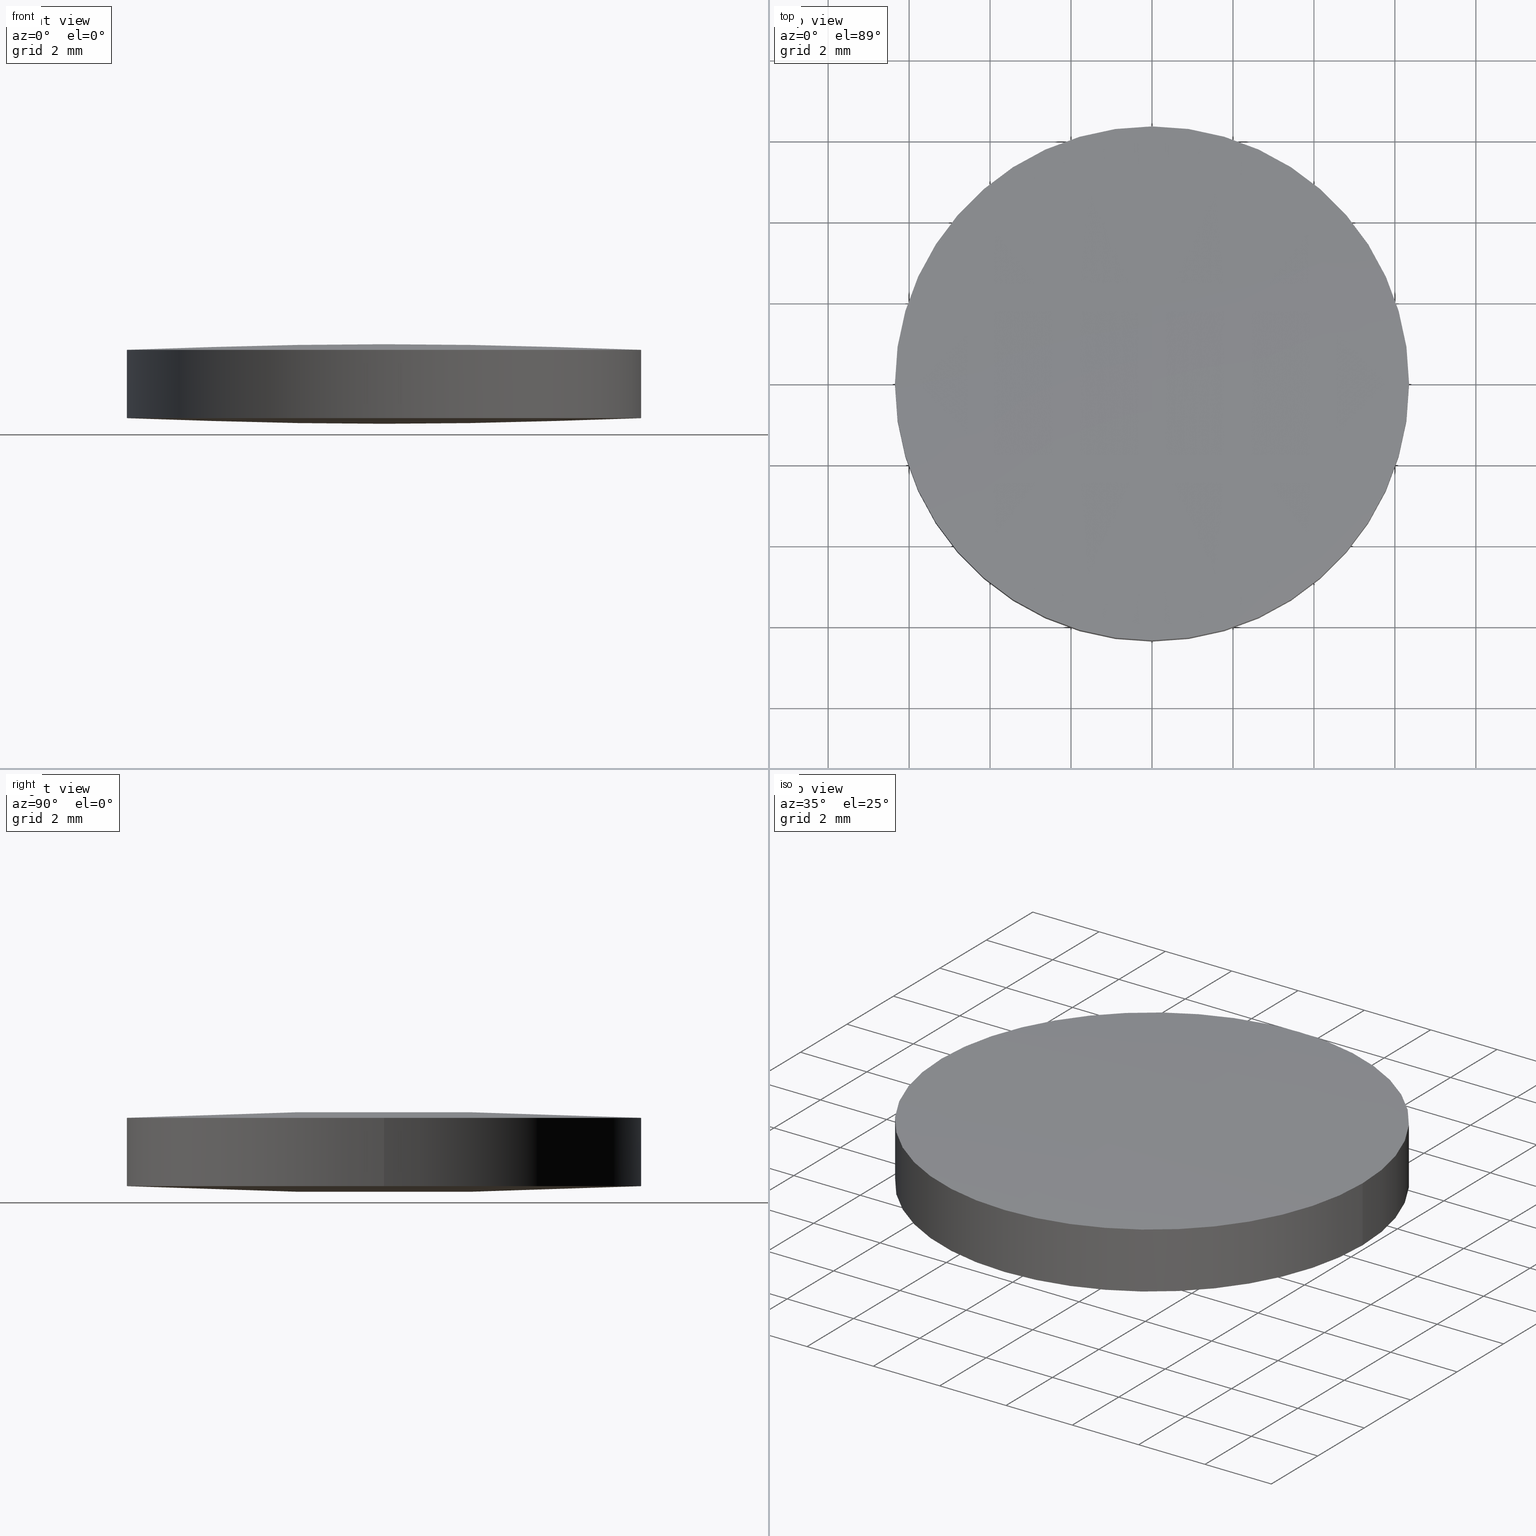
[diagram: canonical four-view strip — front | top / right | iso, engineering-drawing reading convention]
A machine part, canonical four-view strip (front | top / right | iso — engineering-drawing reading convention). The complete STEP part file that produces these views, byte-faithful:
ISO-10303-21;
HEADER;
FILE_DESCRIPTION (( 'STEP AP203' ),
    '1' );
FILE_NAME ('111-0128E BK7 bi-cx 12.7 F125.STEP',
    '2019-01-09T08:15:27',
    ( '' ),
    ( '' ),
    'SwSTEP 2.0',
    'SolidWorks 2017',
    '' );
FILE_SCHEMA (( 'CONFIG_CONTROL_DESIGN' ));
ENDSEC;

DATA;
#1 = ORIENTED_EDGE ( 'NONE', *, *, #227, .F. ) ;
#2 = CARTESIAN_POINT ( 'NONE',  ( 4.261986648307224200, 2.143812045025328400, 2.000641063830584700 ) ) ;
#3 = CARTESIAN_POINT ( 'NONE',  ( 1.040834085586084300E-014, 2.143812045025328000, 2.053306066189127100 ) ) ;
#4 = ADVANCED_BREP_SHAPE_REPRESENTATION ( '111-0128E BK7 bi-cx 12.7 F125', ( #196, #248 ), #107 ) ;
#5 = DIRECTION ( 'NONE',  ( 1.000000000000000000, 0.0000000000000000000, 0.0000000000000000000 ) ) ;
#6 = AXIS2_PLACEMENT_3D ( 'NONE', #287, #16, #84 ) ;
#7 = ORIENTED_EDGE ( 'NONE', *, *, #211, .F. ) ;
#8 = APPLICATION_CONTEXT ( 'configuration controlled 3d designs of mechanical parts and assemblies' ) ;
#9 = DATE_TIME_ROLE ( 'classification_date' ) ;
#10 = PERSON_AND_ORGANIZATION ( #162, #277 ) ;
#11 = PERSON_AND_ORGANIZATION ( #162, #277 ) ;
#12 = VERTEX_POINT ( 'NONE', #257 ) ;
#13 = CC_DESIGN_SECURITY_CLASSIFICATION ( #198, ( #127 ) ) ;
#14 = CARTESIAN_POINT ( 'NONE',  ( 1.990587361894917900E-014, 6.426137571815884200, 0.1597864493476375300 ) ) ;
#15 = DIRECTION ( 'NONE',  ( 1.000000000000000000, 0.0000000000000000000, 0.0000000000000000000 ) ) ;
#16 = DIRECTION ( 'NONE',  ( -0.0000000000000000000, -0.0000000000000000000, -1.000000000000000000 ) ) ;
#17 = CARTESIAN_POINT ( 'NONE',  ( -6.380174810760537200, -6.426137571816120400, 1.682510928002335100 ) ) ;
#18 = DIRECTION ( 'NONE',  ( 1.000000000000000000, 0.0000000000000000000, 0.0000000000000000000 ) ) ;
#19 = AXIS2_PLACEMENT_3D ( 'NONE', #210, #139, #185 ) ;
#20 = CARTESIAN_POINT ( 'NONE',  ( -2.127807646056741200, -6.426137571816119600, 1.840213550652392000 ) ) ;
#21 = APPROVAL_PERSON_ORGANIZATION ( #10, #56, #72 ) ;
#22 = CARTESIAN_POINT ( 'NONE',  ( 4.261986648307226000, -2.143812045025273800, 2.000641063830586500 ) ) ;
#23 = CARTESIAN_POINT ( 'NONE',  ( -1.127570259384924600E-014, 6.426137571815883300, 0.1597864493476235700 ) ) ;
#24 = CARTESIAN_POINT ( 'NONE',  ( 1.387778780781445700E-014, -6.426137571816118700, 1.840213550652405800 ) ) ;
#25 = AXIS2_PLACEMENT_3D ( 'NONE', #120, #157, #183 ) ;
#26 = CC_DESIGN_PERSON_AND_ORGANIZATION_ASSIGNMENT ( #140, #222, ( #127 ) ) ;
#27 = AXIS2_PLACEMENT_3D ( 'NONE', #83, #100, #116 ) ;
#28 = PERSON_AND_ORGANIZATION ( #162, #277 ) ;
#29 = EDGE_LOOP ( 'NONE', ( #7, #73, #203 ) ) ;
#30 =( LENGTH_UNIT ( ) NAMED_UNIT ( * ) SI_UNIT ( .MILLI., .METRE. ) );
#31 = COORDINATED_UNIVERSAL_TIME_OFFSET ( 2, 0, .AHEAD. ) ;
#32 = FACE_OUTER_BOUND ( 'NONE', #170, .T. ) ;
#33 = CARTESIAN_POINT ( 'NONE',  ( 2.127807646056743900, 6.426137571815883300, 0.1597864493476376100 ) ) ;
#34 = DIRECTION ( 'NONE',  ( -0.0000000000000000000, -0.0000000000000000000, -1.000000000000000000 ) ) ;
#35 = CYLINDRICAL_SURFACE ( 'NONE', #274, 6.349999999999999600 ) ;
#36 = CALENDAR_DATE ( 2019, 9, 1 ) ;
#37 = DIRECTION ( 'NONE',  ( 1.000000000000000000, 0.0000000000000000000, 0.0000000000000000000 ) ) ;
#38 =( BOUNDED_SURFACE ( )  B_SPLINE_SURFACE ( 3, 3, ( 
 ( #235, #20, #62, #17 ),
 ( #43, #63, #41, #42 ),
 ( #212, #89, #126, #249 ),
 ( #271, #103, #92, #142 ) ),
 .UNSPECIFIED., .F., .F., .F. ) 
 B_SPLINE_SURFACE_WITH_KNOTS ( ( 4, 4 ),
 ( 4, 4 ),
 ( 0.0000000000000000000, 1.000000000000000000 ),
 ( 0.0000000000000000000, 1.000000000000000000 ),
 .UNSPECIFIED. ) 
 GEOMETRIC_REPRESENTATION_ITEM ( )  RATIONAL_B_SPLINE_SURFACE ( (
 ( 1.000000000000000000, 0.9997964399850740600, 0.9997964399850740600, 1.000000000000000000),
 ( 0.9991761461750572300, 0.9989727538638282200, 0.9989727538638282200, 0.9991761461750572300),
 ( 0.9991761461750572300, 0.9989727538638282200, 0.9989727538638282200, 0.9991761461750572300),
 ( 1.000000000000000000, 0.9997964399850740600, 0.9997964399850740600, 1.000000000000000000) ) ) 
 REPRESENTATION_ITEM ( '' )  SURFACE ( )  );
#39 = PRODUCT_RELATED_PRODUCT_CATEGORY ( 'detail', '', ( #47 ) ) ;
#40 = DIRECTION ( 'NONE',  ( 1.000000000000000000, 0.0000000000000000000, 0.0000000000000000000 ) ) ;
#41 = CARTESIAN_POINT ( 'NONE',  ( -4.261986648307240200, -2.143812045025276000, 2.000641063830582000 ) ) ;
#42 = CARTESIAN_POINT ( 'NONE',  ( -6.390702650715330600, -2.143812045025276400, 1.895343220579506900 ) ) ;
#43 = CARTESIAN_POINT ( 'NONE',  ( -1.798689765139403600E-014, -2.143812045025275100, 2.053306066189115200 ) ) ;
#44 = VERTEX_POINT ( 'NONE', #152 ) ;
#45 = CARTESIAN_POINT ( 'NONE',  ( 6.349999999999999600, 1.221245327087670000E-015, 0.1560202719460870000 ) ) ;
#46 = CARTESIAN_POINT ( 'NONE',  ( -4.261986648307224200, 2.143812045025231600, -0.0006410638305369079000 ) ) ;
#47 = PRODUCT ( '111-0128E BK7 bi-cx 12.7 F125', '111-0128E BK7 bi-cx 12.7 F125', '', ( #108 ) ) ;
#48 = CARTESIAN_POINT ( 'NONE',  ( -6.390702650715310200, 2.143812045025232000, 0.1046567794205386600 ) ) ;
#49 = CALENDAR_DATE ( 2019, 9, 1 ) ;
#50 = DIRECTION ( 'NONE',  ( 0.0000000000000000000, 0.0000000000000000000, 1.000000000000000000 ) ) ;
#51 = SECURITY_CLASSIFICATION_LEVEL ( 'unclassified' ) ;
#52 = ORIENTED_EDGE ( 'NONE', *, *, #227, .T. ) ;
#53 = PERSON_AND_ORGANIZATION_ROLE ( 'creator' ) ;
#54 = ORIENTED_EDGE ( 'NONE', *, *, #129, .T. ) ;
#55 = AXIS2_PLACEMENT_3D ( 'NONE', #82, #286, #15 ) ;
#56 = APPROVAL ( #192, 'UNSPECIFIED' ) ;
#57 = CARTESIAN_POINT ( 'NONE',  ( 1.895048814194306300E-014, 2.143812045025231100, -0.05330606618906481900 ) ) ;
#58 = CARTESIAN_POINT ( 'NONE',  ( 1.798689765139404300E-014, -2.143812045025180100, -0.05330606618906638000 ) ) ;
#59 = CARTESIAN_POINT ( 'NONE',  ( 2.498001805406600200E-016, 1.221245327087670000E-015, 1.843979728053910100 ) ) ;
#60 = FACE_OUTER_BOUND ( 'NONE', #29, .T. ) ;
#61 = DIRECTION ( 'NONE',  ( 0.0000000000000000000, 0.0000000000000000000, 1.000000000000000000 ) ) ;
#62 = CARTESIAN_POINT ( 'NONE',  ( -4.254965587279182100, -6.426137571816119600, 1.787635306940968100 ) ) ;
#63 = CARTESIAN_POINT ( 'NONE',  ( -2.131318712605341200, -2.143812045025275600, 2.053306066189114300 ) ) ;
#64 = PERSON_AND_ORGANIZATION ( #162, #277 ) ;
#65 = EDGE_CURVE ( 'NONE', #226, #283, #188, .T. ) ;
#66 = ORIENTED_EDGE ( 'NONE', *, *, #110, .F. ) ;
#67 = DESIGN_CONTEXT ( 'detailed design', #147, 'design' ) ;
#68 = CARTESIAN_POINT ( 'NONE',  ( -4.254965587279170500, -6.426137571815831800, 0.2123646930590568100 ) ) ;
#69 = CARTESIAN_POINT ( 'NONE',  ( 2.131318712605331000, -2.143812045025274200, 2.053306066189127600 ) ) ;
#70 = CARTESIAN_POINT ( 'NONE',  ( -6.380174810760522100, -6.426137571815831800, 0.3174890719976897200 ) ) ;
#71 = CARTESIAN_POINT ( 'NONE',  ( -1.127570259384924600E-014, 2.143812045025230700, -0.05330606618907874500 ) ) ;
#72 = APPROVAL_ROLE ( '' ) ;
#73 = ORIENTED_EDGE ( 'NONE', *, *, #234, .T. ) ;
#74 = APPROVAL_ROLE ( '' ) ;
#75 = AXIS2_PLACEMENT_3D ( 'NONE', #59, #80, #37 ) ;
#76 = COORDINATED_UNIVERSAL_TIME_OFFSET ( 2, 0, .AHEAD. ) ;
#77 = APPROVAL_STATUS ( 'not_yet_approved' ) ;
#78 = CC_DESIGN_APPROVAL ( #56, ( #127 ) ) ;
#79 = LOCAL_TIME ( 10, 15, 27.00000000000000000, #135 ) ;
#80 = DIRECTION ( 'NONE',  ( -0.0000000000000000000, -0.0000000000000000000, -1.000000000000000000 ) ) ;
#81 = CARTESIAN_POINT ( 'NONE',  ( 6.380174810760535400, -6.426137571815834400, 0.3174890719976943300 ) ) ;
#82 = CARTESIAN_POINT ( 'NONE',  ( 2.498001805406600200E-016, 1.221245327087670000E-015, 1.843979728053910100 ) ) ;
#83 = CARTESIAN_POINT ( 'NONE',  ( 2.498001805406600200E-016, 1.221245327087670000E-015, 1.843979728053910100 ) ) ;
#84 = DIRECTION ( 'NONE',  ( 1.000000000000000000, 0.0000000000000000000, 0.0000000000000000000 ) ) ;
#85 = DIRECTION ( 'NONE',  ( 2.247376333165669900E-016, -1.000000000000000000, 2.146602909174702700E-016 ) ) ;
#86 = LOCAL_TIME ( 10, 15, 27.00000000000000000, #213 ) ;
#87 = CARTESIAN_POINT ( 'NONE',  ( 2.127807646056734600, -6.426137571816117800, 1.840213550652405500 ) ) ;
#88 = ORIENTED_EDGE ( 'NONE', *, *, #65, .F. ) ;
#89 = CARTESIAN_POINT ( 'NONE',  ( -2.131318712605342100, 2.143812045025326600, 2.053306066189112500 ) ) ;
#90 = CARTESIAN_POINT ( 'NONE',  ( 2.127807646056731000, 6.426137571816172000, 1.840213550652405500 ) ) ;
#91 = APPROVAL_PERSON_ORGANIZATION ( #109, #237, #106 ) ;
#92 = CARTESIAN_POINT ( 'NONE',  ( -4.254965587279184700, 6.426137571816170200, 1.787635306940968100 ) ) ;
#93 = DATE_TIME_ROLE ( 'creation_date' ) ;
#94 = APPROVAL_DATE_TIME ( #148, #56 ) ;
#95 = PERSON_AND_ORGANIZATION ( #162, #277 ) ;
#96 = ORIENTED_EDGE ( 'NONE', *, *, #234, .F. ) ;
#97 = EDGE_LOOP ( 'NONE', ( #144, #141, #113 ) ) ;
#98 = CARTESIAN_POINT ( 'NONE',  ( 2.127807646056740800, -6.426137571815833600, 0.1597864493476376100 ) ) ;
#99 = VERTEX_POINT ( 'NONE', #177 ) ;
#100 = DIRECTION ( 'NONE',  ( -0.0000000000000000000, -0.0000000000000000000, -1.000000000000000000 ) ) ;
#101 = UNCERTAINTY_MEASURE_WITH_UNIT (LENGTH_MEASURE( 1.000000000000000100E-005 ), #30, 'distance_accuracy_value', 'NONE');
#102 = CARTESIAN_POINT ( 'NONE',  ( 6.349999999999999600, 1.221245327087670000E-015, 0.1560202719460870000 ) ) ;
#103 = CARTESIAN_POINT ( 'NONE',  ( -2.127807646056744300, 6.426137571816170200, 1.840213550652392000 ) ) ;
#104 = CARTESIAN_POINT ( 'NONE',  ( 1.214306433183765000E-014, -2.143812045025274700, 2.053306066189128900 ) ) ;
#105 = CARTESIAN_POINT ( 'NONE',  ( 6.390702650715312800, -2.143812045025273800, 1.895343220579511300 ) ) ;
#106 = APPROVAL_ROLE ( '' ) ;
#107 =( GEOMETRIC_REPRESENTATION_CONTEXT ( 3 ) GLOBAL_UNCERTAINTY_ASSIGNED_CONTEXT ( ( #101 ) ) GLOBAL_UNIT_ASSIGNED_CONTEXT ( ( #30, #229, #253 ) ) REPRESENTATION_CONTEXT ( 'NONE', 'WORKASPACE' ) );
#108 = MECHANICAL_CONTEXT ( 'NONE', #8, 'mechanical' ) ;
#109 = PERSON_AND_ORGANIZATION ( #162, #277 ) ;
#110 = EDGE_CURVE ( 'NONE', #44, #226, #160, .T. ) ;
#111 = APPLICATION_PROTOCOL_DEFINITION ( 'international standard', 'config_control_design', 1994, #8 ) ;
#112 = EDGE_CURVE ( 'NONE', #283, #12, #262, .T. ) ;
#113 = ORIENTED_EDGE ( 'NONE', *, *, #278, .T. ) ;
#114 = VERTEX_POINT ( 'NONE', #205 ) ;
#115 = DATE_AND_TIME ( #169, #243 ) ;
#116 = DIRECTION ( 'NONE',  ( 1.000000000000000000, 0.0000000000000000000, 0.0000000000000000000 ) ) ;
#117 = ORIENTED_EDGE ( 'NONE', *, *, #172, .F. ) ;
#118 =( BOUNDED_SURFACE ( )  B_SPLINE_SURFACE ( 3, 3, ( 
 ( #244, #165, #87, #24 ),
 ( #105, #22, #69, #104 ),
 ( #275, #2, #246, #3 ),
 ( #220, #273, #90, #217 ) ),
 .UNSPECIFIED., .F., .F., .T. ) 
 B_SPLINE_SURFACE_WITH_KNOTS ( ( 4, 4 ),
 ( 4, 4 ),
 ( 0.0000000000000000000, 1.000000000000000000 ),
 ( 0.0000000000000000000, 1.000000000000000000 ),
 .UNSPECIFIED. ) 
 GEOMETRIC_REPRESENTATION_ITEM ( )  RATIONAL_B_SPLINE_SURFACE ( (
 ( 1.000000000000000000, 0.9997964399850740600, 0.9997964399850740600, 1.000000000000000000),
 ( 0.9991761461750572300, 0.9989727538638282200, 0.9989727538638282200, 0.9991761461750572300),
 ( 0.9991761461750572300, 0.9989727538638282200, 0.9989727538638282200, 0.9991761461750572300),
 ( 1.000000000000000000, 0.9997964399850740600, 0.9997964399850740600, 1.000000000000000000) ) ) 
 REPRESENTATION_ITEM ( '' )  SURFACE ( )  );
#119 = DIRECTION ( 'NONE',  ( 0.0000000000000000000, 0.0000000000000000000, 1.000000000000000000 ) ) ;
#120 = CARTESIAN_POINT ( 'NONE',  ( 2.498001805406600200E-016, 1.221245327087670000E-015, 0.1560202719460870000 ) ) ;
#121 = CARTESIAN_POINT ( 'NONE',  ( -4.261986648307226000, -2.143812045025179600, -0.0006410638305384935400 ) ) ;
#122 = EDGE_CURVE ( 'NONE', #233, #99, #267, .T. ) ;
#123 = EDGE_LOOP ( 'NONE', ( #216, #239, #137 ) ) ;
#124 = DIRECTION ( 'NONE',  ( 1.000000000000000000, 1.776356839400250500E-015, 0.0000000000000000000 ) ) ;
#125 = APPROVAL_DATE_TIME ( #268, #237 ) ;
#126 = CARTESIAN_POINT ( 'NONE',  ( -4.261986648307241100, 2.143812045025326200, 2.000641063830580300 ) ) ;
#127 = PRODUCT_DEFINITION_FORMATION_WITH_SPECIFIED_SOURCE ( 'ANY', '', #47, .NOT_KNOWN. ) ;
#128 = APPROVAL_STATUS ( 'not_yet_approved' ) ;
#129 = EDGE_CURVE ( 'NONE', #12, #44, #225, .T. ) ;
#130 = LOCAL_TIME ( 10, 15, 27.00000000000000000, #187 ) ;
#131 = PERSON_AND_ORGANIZATION_ROLE ( 'classification_officer' ) ;
#132 = CARTESIAN_POINT ( 'NONE',  ( 6.390702650715328800, -2.143812045025181400, 0.1046567794205416900 ) ) ;
#133 = DIRECTION ( 'NONE',  ( 1.000000000000000000, 8.881784197001252300E-016, 0.0000000000000000000 ) ) ;
#134 = CARTESIAN_POINT ( 'NONE',  ( 6.390702650715329700, 2.143812045025229800, 0.1046567794205432900 ) ) ;
#135 = COORDINATED_UNIVERSAL_TIME_OFFSET ( 2, 0, .AHEAD. ) ;
#136 = CARTESIAN_POINT ( 'NONE',  ( 2.131318712605339900, -2.143812045025180500, -0.05330606618906632400 ) ) ;
#137 = ORIENTED_EDGE ( 'NONE', *, *, #129, .F. ) ;
#138 = AXIS2_PLACEMENT_3D ( 'NONE', #261, #34, #133 ) ;
#139 = DIRECTION ( 'NONE',  ( 1.000000000000000000, -2.247376333165669900E-016, 3.291634602124400000E-017 ) ) ;
#140 = PERSON_AND_ORGANIZATION ( #162, #277 ) ;
#141 = ORIENTED_EDGE ( 'NONE', *, *, #211, .T. ) ;
#142 = CARTESIAN_POINT ( 'NONE',  ( -6.380174810760539800, 6.426137571816169300, 1.682510928002335100 ) ) ;
#143 = CARTESIAN_POINT ( 'NONE',  ( -1.703471866693090100E-014, -6.350000000000194200, 1.843979728053914100 ) ) ;
#144 = ORIENTED_EDGE ( 'NONE', *, *, #186, .T. ) ;
#145 = PERSON_AND_ORGANIZATION_ROLE ( 'design_owner' ) ;
#146 = DATE_AND_TIME ( #36, #130 ) ;
#147 = APPLICATION_CONTEXT ( 'configuration controlled 3d designs of mechanical parts and assemblies' ) ;
#148 = DATE_AND_TIME ( #224, #86 ) ;
#149 = ORIENTED_EDGE ( 'NONE', *, *, #278, .F. ) ;
#150 = CARTESIAN_POINT ( 'NONE',  ( 0.0000000000000000000, 0.0000000000000000000, 0.0000000000000000000 ) ) ;
#151 = ORIENTED_EDGE ( 'NONE', *, *, #186, .F. ) ;
#152 = CARTESIAN_POINT ( 'NONE',  ( -1.988888661005140300E-014, 6.350000000000244800, 1.843979728053914100 ) ) ;
#153 = CC_DESIGN_PERSON_AND_ORGANIZATION_ASSIGNMENT ( #11, #145, ( #47 ) ) ;
#154 = FACE_OUTER_BOUND ( 'NONE', #230, .T. ) ;
#155 = CARTESIAN_POINT ( 'NONE',  ( 4.254965587279183800, 6.426137571815883300, 0.2123646930590614400 ) ) ;
#156 = DIRECTION ( 'NONE',  ( 1.000000000000000000, -8.881784197001252300E-016, 0.0000000000000000000 ) ) ;
#157 = DIRECTION ( 'NONE',  ( 0.0000000000000000000, 0.0000000000000000000, 1.000000000000000000 ) ) ;
#158 = ORIENTED_EDGE ( 'NONE', *, *, #122, .F. ) ;
#159 = CARTESIAN_POINT ( 'NONE',  ( 2.498001805406600200E-016, 1.221245327087670000E-015, 0.1560202719460870000 ) ) ;
#160 = CIRCLE ( 'NONE', #27, 6.349999999999999600 ) ;
#161 = CARTESIAN_POINT ( 'NONE',  ( -1.474514954580286000E-014, -6.426137571815833600, 0.1597864493476235100 ) ) ;
#162 = PERSON ( 'UNSPECIFIED', 'UNSPECIFIED', 'UNSPECIFIED', ('UNSPECIFIED'), ('UNSPECIFIED'), ('UNSPECIFIED') ) ;
#163 = VECTOR ( 'NONE', #289, 1000.000000000000000 ) ;
#164 = EDGE_LOOP ( 'NONE', ( #1, #96, #151, #219, #263, #194 ) ) ;
#165 = CARTESIAN_POINT ( 'NONE',  ( 4.254965587279170500, -6.426137571816117800, 1.787635306940972700 ) ) ;
#166 = CC_DESIGN_APPROVAL ( #215, ( #208 ) ) ;
#167 = ORIENTED_EDGE ( 'NONE', *, *, #251, .F. ) ;
#168 =( BOUNDED_SURFACE ( )  B_SPLINE_SURFACE ( 3, 3, ( 
 ( #284, #98, #199, #81 ),
 ( #58, #136, #206, #132 ),
 ( #57, #204, #259, #134 ),
 ( #14, #33, #155, #202 ) ),
 .UNSPECIFIED., .F., .F., .T. ) 
 B_SPLINE_SURFACE_WITH_KNOTS ( ( 4, 4 ),
 ( 4, 4 ),
 ( 0.0000000000000000000, 1.000000000000000000 ),
 ( 0.0000000000000000000, 1.000000000000000000 ),
 .UNSPECIFIED. ) 
 GEOMETRIC_REPRESENTATION_ITEM ( )  RATIONAL_B_SPLINE_SURFACE ( (
 ( 1.000000000000000000, 0.9997964399850740600, 0.9997964399850740600, 1.000000000000000000),
 ( 0.9991761461750572300, 0.9989727538638282200, 0.9989727538638282200, 0.9991761461750572300),
 ( 0.9991761461750572300, 0.9989727538638282200, 0.9989727538638282200, 0.9991761461750572300),
 ( 1.000000000000000000, 0.9997964399850740600, 0.9997964399850740600, 1.000000000000000000) ) ) 
 REPRESENTATION_ITEM ( '' )  SURFACE ( )  );
#169 = CALENDAR_DATE ( 2019, 9, 1 ) ;
#170 = EDGE_LOOP ( 'NONE', ( #117, #88, #66 ) ) ;
#171 = ADVANCED_FACE ( 'NONE', ( #269 ), #168, .T. ) ;
#172 = EDGE_CURVE ( 'NONE', #283, #44, #252, .T. ) ;
#173 = LINE ( 'NONE', #102, #163 ) ;
#174 = DIRECTION ( 'NONE',  ( -0.0000000000000000000, -0.0000000000000000000, -1.000000000000000000 ) ) ;
#175 = DATE_AND_TIME ( #254, #79 ) ;
#176 = CC_DESIGN_DATE_AND_TIME_ASSIGNMENT ( #115, #93, ( #208 ) ) ;
#177 = CARTESIAN_POINT ( 'NONE',  ( 1.988888661005132700E-014, 6.349999999999970300, 0.1560202719460852300 ) ) ;
#178 = CIRCLE ( 'NONE', #6, 6.349999999999999600 ) ;
#179 = CARTESIAN_POINT ( 'NONE',  ( -6.349999999999999600, 1.998896044546239400E-015, 0.1560202719460870000 ) ) ;
#180 = AXIS2_PLACEMENT_3D ( 'NONE', #240, #182, #40 ) ;
#181 = SHAPE_DEFINITION_REPRESENTATION ( #228, #4 ) ;
#182 = DIRECTION ( 'NONE',  ( -0.0000000000000000000, -0.0000000000000000000, -1.000000000000000000 ) ) ;
#183 = DIRECTION ( 'NONE',  ( 1.000000000000000000, 0.0000000000000000000, 0.0000000000000000000 ) ) ;
#184 = CC_DESIGN_PERSON_AND_ORGANIZATION_ASSIGNMENT ( #260, #131, ( #198 ) ) ;
#185 = DIRECTION ( 'NONE',  ( -2.247376333165669900E-016, -1.000000000000000000, -4.293205818349405500E-016 ) ) ;
#186 = EDGE_CURVE ( 'NONE', #280, #114, #178, .T. ) ;
#187 = COORDINATED_UNIVERSAL_TIME_OFFSET ( 2, 0, .AHEAD. ) ;
#188 = CIRCLE ( 'NONE', #55, 6.349999999999999600 ) ;
#189 = CARTESIAN_POINT ( 'NONE',  ( -6.390702650715312000, -2.143812045025179200, 0.1046567794205370800 ) ) ;
#190 = CARTESIAN_POINT ( 'NONE',  ( -4.254965587279167000, 6.426137571815885100, 0.2123646930590568400 ) ) ;
#191 = CARTESIAN_POINT ( 'NONE',  ( -2.131318712605329700, 2.143812045025231100, -0.05330606618907832200 ) ) ;
#192 = APPROVAL_STATUS ( 'not_yet_approved' ) ;
#193 = ADVANCED_FACE ( 'NONE', ( #154 ), #209, .T. ) ;
#194 = ORIENTED_EDGE ( 'NONE', *, *, #112, .T. ) ;
#195 = CC_DESIGN_PERSON_AND_ORGANIZATION_ASSIGNMENT ( #28, #279, ( #127 ) ) ;
#196 = MANIFOLD_SOLID_BREP ( 'Imported1', #245 ) ;
#197 = VECTOR ( 'NONE', #61, 1000.000000000000000 ) ;
#198 = SECURITY_CLASSIFICATION ( '', '', #51 ) ;
#199 = CARTESIAN_POINT ( 'NONE',  ( 4.254965587279181200, -6.426137571815833600, 0.2123646930590614700 ) ) ;
#200 = AXIS2_PLACEMENT_3D ( 'NONE', #272, #221, #124 ) ;
#201 =( BOUNDED_SURFACE ( )  B_SPLINE_SURFACE ( 3, 3, ( 
 ( #70, #68, #242, #161 ),
 ( #189, #121, #247, #218 ),
 ( #48, #46, #191, #71 ),
 ( #292, #190, #294, #23 ) ),
 .UNSPECIFIED., .F., .F., .F. ) 
 B_SPLINE_SURFACE_WITH_KNOTS ( ( 4, 4 ),
 ( 4, 4 ),
 ( 0.0000000000000000000, 1.000000000000000000 ),
 ( 0.0000000000000000000, 1.000000000000000000 ),
 .UNSPECIFIED. ) 
 GEOMETRIC_REPRESENTATION_ITEM ( )  RATIONAL_B_SPLINE_SURFACE ( (
 ( 1.000000000000000000, 0.9997964399850740600, 0.9997964399850740600, 1.000000000000000000),
 ( 0.9991761461750572300, 0.9989727538638282200, 0.9989727538638282200, 0.9991761461750572300),
 ( 0.9991761461750572300, 0.9989727538638282200, 0.9989727538638282200, 0.9991761461750572300),
 ( 1.000000000000000000, 0.9997964399850740600, 0.9997964399850740600, 1.000000000000000000) ) ) 
 REPRESENTATION_ITEM ( '' )  SURFACE ( )  );
#202 = CARTESIAN_POINT ( 'NONE',  ( 6.380174810760538900, 6.426137571815882400, 0.3174890719976943300 ) ) ;
#203 = ORIENTED_EDGE ( 'NONE', *, *, #122, .T. ) ;
#204 = CARTESIAN_POINT ( 'NONE',  ( 2.131318712605341700, 2.143812045025230700, -0.05330606618906474900 ) ) ;
#205 = CARTESIAN_POINT ( 'NONE',  ( 1.703471866693095400E-014, -6.349999999999920600, 0.1560202719460852300 ) ) ;
#206 = CARTESIAN_POINT ( 'NONE',  ( 4.261986648307239300, -2.143812045025181000, -0.0006410638305338854600 ) ) ;
#207 = CARTESIAN_POINT ( 'NONE',  ( -1.421085471520200100E-014, 4.973799150320700000E-014, -127.3000000000000000 ) ) ;
#208 = PRODUCT_DEFINITION ( 'UNKNOWN', '', #127, #67 ) ;
#209 = CYLINDRICAL_SURFACE ( 'NONE', #25, 6.349999999999999600 ) ;
#210 = CARTESIAN_POINT ( 'NONE',  ( 1.421085471520200100E-014, 4.973799150320700000E-014, 129.3000000000000400 ) ) ;
#211 = EDGE_CURVE ( 'NONE', #114, #99, #282, .T. ) ;
#212 = CARTESIAN_POINT ( 'NONE',  ( -1.895048814194310400E-014, 2.143812045025327500, 2.053306066189113400 ) ) ;
#213 = COORDINATED_UNIVERSAL_TIME_OFFSET ( 2, 0, .AHEAD. ) ;
#214 = CIRCLE ( 'NONE', #180, 6.349999999999999600 ) ;
#215 = APPROVAL ( #77, 'UNSPECIFIED' ) ;
#216 = ORIENTED_EDGE ( 'NONE', *, *, #112, .F. ) ;
#217 = CARTESIAN_POINT ( 'NONE',  ( 1.040834085586084300E-014, 6.426137571816171100, 1.840213550652405800 ) ) ;
#218 = CARTESIAN_POINT ( 'NONE',  ( -1.301042606982605300E-014, -2.143812045025180500, -0.05330606618908043100 ) ) ;
#219 = ORIENTED_EDGE ( 'NONE', *, *, #251, .T. ) ;
#220 = CARTESIAN_POINT ( 'NONE',  ( 6.380174810760518500, 6.426137571816172800, 1.682510928002339800 ) ) ;
#221 = DIRECTION ( 'NONE',  ( -0.0000000000000000000, -0.0000000000000000000, -1.000000000000000000 ) ) ;
#222 = PERSON_AND_ORGANIZATION_ROLE ( 'creator' ) ;
#223 = CC_DESIGN_DATE_AND_TIME_ASSIGNMENT ( #146, #9, ( #198 ) ) ;
#224 = CALENDAR_DATE ( 2019, 9, 1 ) ;
#225 = CIRCLE ( 'NONE', #75, 6.349999999999999600 ) ;
#226 = VERTEX_POINT ( 'NONE', #288 ) ;
#227 = EDGE_CURVE ( 'NONE', #233, #12, #265, .T. ) ;
#228 = PRODUCT_DEFINITION_SHAPE ( 'NONE', 'NONE',  #208 ) ;
#229 =( NAMED_UNIT ( * ) PLANE_ANGLE_UNIT ( ) SI_UNIT ( $, .RADIAN. ) );
#230 = EDGE_LOOP ( 'NONE', ( #158, #52, #54, #270, #167, #149 ) ) ;
#231 = CC_DESIGN_PERSON_AND_ORGANIZATION_ASSIGNMENT ( #64, #53, ( #208 ) ) ;
#232 = CARTESIAN_POINT ( 'NONE',  ( 2.498001805406600200E-016, 1.221245327087670000E-015, 0.1560202719460870000 ) ) ;
#233 = VERTEX_POINT ( 'NONE', #266 ) ;
#234 = EDGE_CURVE ( 'NONE', #114, #233, #214, .T. ) ;
#235 = CARTESIAN_POINT ( 'NONE',  ( -1.701748372043599500E-014, -6.426137571816118700, 1.840213550652392000 ) ) ;
#236 = APPROVAL_DATE_TIME ( #175, #215 ) ;
#237 = APPROVAL ( #128, 'UNSPECIFIED' ) ;
#238 = FACE_OUTER_BOUND ( 'NONE', #164, .T. ) ;
#239 = ORIENTED_EDGE ( 'NONE', *, *, #172, .T. ) ;
#240 = CARTESIAN_POINT ( 'NONE',  ( 2.498001805406600200E-016, 1.221245327087670000E-015, 0.1560202719460870000 ) ) ;
#241 = AXIS2_PLACEMENT_3D ( 'NONE', #232, #174, #156 ) ;
#242 = CARTESIAN_POINT ( 'NONE',  ( -2.127807646056735400, -6.426137571815832700, 0.1597864493476239500 ) ) ;
#243 = LOCAL_TIME ( 10, 15, 27.00000000000000000, #76 ) ;
#244 = CARTESIAN_POINT ( 'NONE',  ( 6.380174810760522100, -6.426137571816116900, 1.682510928002339800 ) ) ;
#245 = CLOSED_SHELL ( 'NONE', ( #171, #256, #193, #285, #250, #276 ) ) ;
#246 = CARTESIAN_POINT ( 'NONE',  ( 2.131318712605328800, 2.143812045025328000, 2.053306066189126300 ) ) ;
#247 = CARTESIAN_POINT ( 'NONE',  ( -2.131318712605331500, -2.143812045025180100, -0.05330606618907999400 ) ) ;
#248 = AXIS2_PLACEMENT_3D ( 'NONE', #150, #50, #5 ) ;
#249 = CARTESIAN_POINT ( 'NONE',  ( -6.390702650715331500, 2.143812045025326200, 1.895343220579505100 ) ) ;
#250 = ADVANCED_FACE ( 'NONE', ( #238 ), #35, .T. ) ;
#251 = EDGE_CURVE ( 'NONE', #280, #226, #173, .T. ) ;
#252 = CIRCLE ( 'NONE', #293, 129.3000000000000400 ) ;
#253 =( NAMED_UNIT ( * ) SI_UNIT ( $, .STERADIAN. ) SOLID_ANGLE_UNIT ( ) );
#254 = CALENDAR_DATE ( 2019, 9, 1 ) ;
#255 = LOCAL_TIME ( 10, 15, 27.00000000000000000, #31 ) ;
#256 = ADVANCED_FACE ( 'NONE', ( #295 ), #38, .T. ) ;
#257 = CARTESIAN_POINT ( 'NONE',  ( -6.349999999999999600, 1.998896044546239400E-015, 1.843979728053910100 ) ) ;
#258 = APPROVAL_PERSON_ORGANIZATION ( #95, #215, #74 ) ;
#259 = CARTESIAN_POINT ( 'NONE',  ( 4.261986648307241100, 2.143812045025230300, -0.0006410638305323000400 ) ) ;
#260 = PERSON_AND_ORGANIZATION ( #162, #277 ) ;
#261 = CARTESIAN_POINT ( 'NONE',  ( 2.498001805406600200E-016, 1.221245327087670000E-015, 1.843979728053910100 ) ) ;
#262 = CIRCLE ( 'NONE', #138, 6.349999999999999600 ) ;
#263 = ORIENTED_EDGE ( 'NONE', *, *, #65, .T. ) ;
#264 = DIRECTION ( 'NONE',  ( -1.000000000000000000, -2.247376333165669900E-016, -3.291634602124409800E-017 ) ) ;
#265 = LINE ( 'NONE', #179, #197 ) ;
#266 = CARTESIAN_POINT ( 'NONE',  ( -6.349999999999999600, 1.998896044546239400E-015, 0.1560202719460870000 ) ) ;
#267 = CIRCLE ( 'NONE', #241, 6.349999999999999600 ) ;
#268 = DATE_AND_TIME ( #49, #255 ) ;
#269 = FACE_OUTER_BOUND ( 'NONE', #97, .T. ) ;
#270 = ORIENTED_EDGE ( 'NONE', *, *, #110, .T. ) ;
#271 = CARTESIAN_POINT ( 'NONE',  ( -1.990587361894925800E-014, 6.426137571816171100, 1.840213550652392000 ) ) ;
#272 = CARTESIAN_POINT ( 'NONE',  ( 2.498001805406600200E-016, 1.221245327087670000E-015, 0.1560202719460870000 ) ) ;
#273 = CARTESIAN_POINT ( 'NONE',  ( 4.254965587279167000, 6.426137571816172000, 1.787635306940972700 ) ) ;
#274 = AXIS2_PLACEMENT_3D ( 'NONE', #159, #119, #18 ) ;
#275 = CARTESIAN_POINT ( 'NONE',  ( 6.390702650715311100, 2.143812045025329300, 1.895343220579510000 ) ) ;
#276 = ADVANCED_FACE ( 'NONE', ( #32 ), #118, .T. ) ;
#277 = ORGANIZATION ( 'UNSPECIFIED', 'UNSPECIFIED', '' ) ;
#278 = EDGE_CURVE ( 'NONE', #99, #280, #291, .T. ) ;
#279 = PERSON_AND_ORGANIZATION_ROLE ( 'design_supplier' ) ;
#280 = VERTEX_POINT ( 'NONE', #45 ) ;
#281 = APPLICATION_PROTOCOL_DEFINITION ( 'international standard', 'config_control_design', 1994, #147 ) ;
#282 = CIRCLE ( 'NONE', #19, 129.3000000000000400 ) ;
#283 = VERTEX_POINT ( 'NONE', #143 ) ;
#284 = CARTESIAN_POINT ( 'NONE',  ( 1.701748372043604600E-014, -6.426137571815832700, 0.1597864493476375300 ) ) ;
#285 = ADVANCED_FACE ( 'NONE', ( #60 ), #201, .T. ) ;
#286 = DIRECTION ( 'NONE',  ( -0.0000000000000000000, -0.0000000000000000000, -1.000000000000000000 ) ) ;
#287 = CARTESIAN_POINT ( 'NONE',  ( 2.498001805406600200E-016, 1.221245327087670000E-015, 0.1560202719460870000 ) ) ;
#288 = CARTESIAN_POINT ( 'NONE',  ( 6.349999999999999600, 1.221245327087670000E-015, 1.843979728053910100 ) ) ;
#289 = DIRECTION ( 'NONE',  ( 0.0000000000000000000, 0.0000000000000000000, 1.000000000000000000 ) ) ;
#290 = CC_DESIGN_APPROVAL ( #237, ( #198 ) ) ;
#291 = CIRCLE ( 'NONE', #200, 6.349999999999999600 ) ;
#292 = CARTESIAN_POINT ( 'NONE',  ( -6.380174810760518500, 6.426137571815885100, 0.3174890719976897200 ) ) ;
#293 = AXIS2_PLACEMENT_3D ( 'NONE', #207, #264, #85 ) ;
#294 = CARTESIAN_POINT ( 'NONE',  ( -2.127807646056731900, 6.426137571815884200, 0.1597864493476239800 ) ) ;
#295 = FACE_OUTER_BOUND ( 'NONE', #123, .T. ) ;
ENDSEC;
END-ISO-10303-21;
